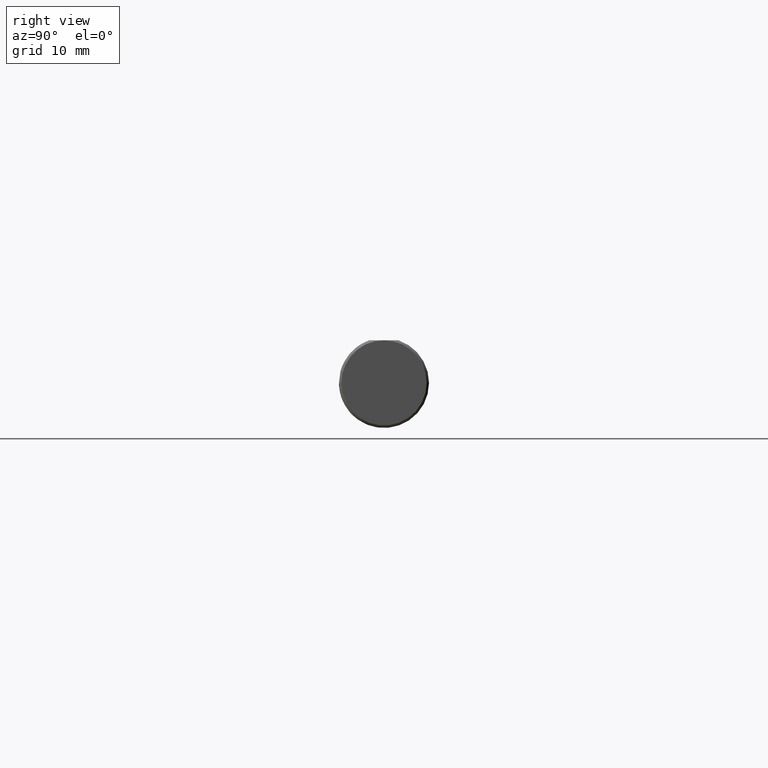
[diagram: clean part render]
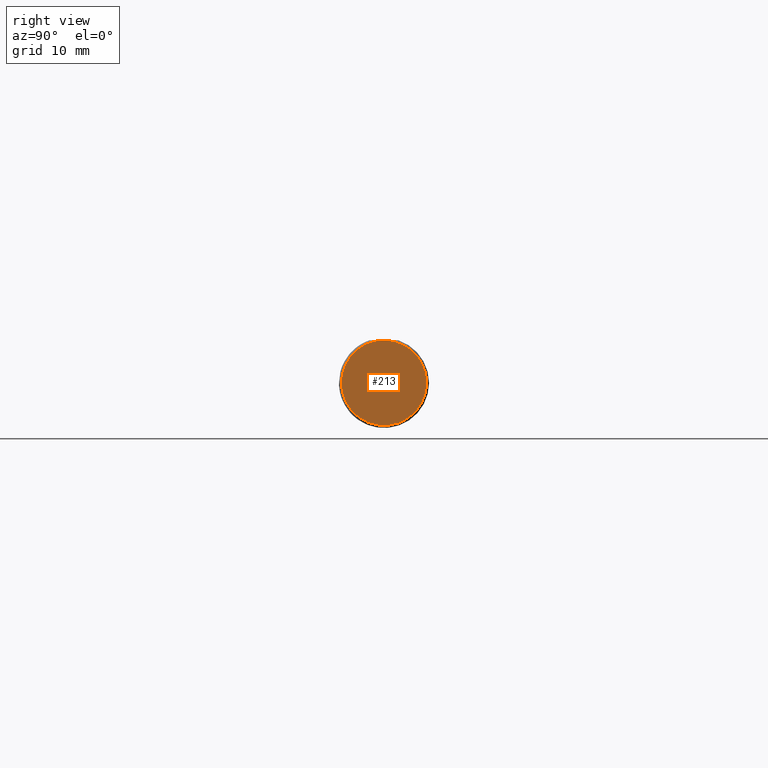
[diagram: same view with one face highlighted and labeled with its STEP entity id]
A machine part, right view. The second image highlights one B-rep face of the part: STEP entity #213.
In plain terms, the highlighted planar face has unit normal (1, 0, -0).
Its self-contained STEP definition (entity closure, byte-faithful):
#19 = AXIS2_PLACEMENT_3D ( 'NONE', #480, #277, #556 ) ;
#52 = EDGE_CURVE ( 'NONE', #694, #455, #196, .T. ) ;
#53 = ORIENTED_EDGE ( 'NONE', *, *, #496, .T. ) ;
#115 = CARTESIAN_POINT ( 'NONE',  ( -1.024723209186555203E-17, 0.1773500000000007848, 2.233143438245201271E-17 ) ) ;
#121 = CARTESIAN_POINT ( 'NONE',  ( 1.147187889101280854E-17, 3.061616997868382155E-16, 0.000000000000000000 ) ) ;
#155 = AXIS2_PLACEMENT_3D ( 'NONE', #744, #204, #479 ) ;
#168 = CARTESIAN_POINT ( 'NONE',  ( 1.147187889101280854E-17, 3.061616997868382155E-16, 0.000000000000000000 ) ) ;
#196 = CIRCLE ( 'NONE', #239, 0.1773500000000004795 ) ;
#204 = DIRECTION ( 'NONE',  ( 1.000000000000000000, 1.224646799147352961E-16, -0.000000000000000000 ) ) ;
#213 = ADVANCED_FACE ( 'NONE', ( #564 ), #355, .T. ) ;
#239 = AXIS2_PLACEMENT_3D ( 'NONE', #121, #726, #672 ) ;
#242 = DIRECTION ( 'NONE',  ( -1.224646799147352961E-16, 1.000000000000000000, 0.000000000000000000 ) ) ;
#277 = DIRECTION ( 'NONE',  ( 1.000000000000000000, 1.224646799147352961E-16, -0.000000000000000000 ) ) ;
#302 = ORIENTED_EDGE ( 'NONE', *, *, #52, .T. ) ;
#355 = PLANE ( 'NONE',  #19 ) ;
#389 = CIRCLE ( 'NONE', #465, 0.1773500000000004795 ) ;
#424 = VERTEX_POINT ( 'NONE', #737 ) ;
#442 = DIRECTION ( 'NONE',  ( 1.000000000000000000, 1.224646799147352961E-16, -0.000000000000000000 ) ) ;
#455 = VERTEX_POINT ( 'NONE', #670 ) ;
#465 = AXIS2_PLACEMENT_3D ( 'NONE', #168, #442, #242 ) ;
#479 = DIRECTION ( 'NONE',  ( -1.224646799147352961E-16, 1.000000000000000000, 0.000000000000000000 ) ) ;
#480 = CARTESIAN_POINT ( 'NONE',  ( 1.147187889101284552E-17, 1.404899976408496659E-33, 0.000000000000000000 ) ) ;
#496 = EDGE_CURVE ( 'NONE', #424, #694, #501, .T. ) ;
#501 = CIRCLE ( 'NONE', #155, 0.1773500000000004795 ) ;
#541 = ORIENTED_EDGE ( 'NONE', *, *, #740, .T. ) ;
#556 = DIRECTION ( 'NONE',  ( -1.224646799147352961E-16, 1.000000000000000000, 0.000000000000000000 ) ) ;
#564 = FACE_OUTER_BOUND ( 'NONE', #615, .T. ) ;
#615 = EDGE_LOOP ( 'NONE', ( #541, #53, #302 ) ) ;
#670 = CARTESIAN_POINT ( 'NONE',  ( -4.018563988022489946E-33, 2.586779880155948158E-16, 0.1773500000000000909 ) ) ;
#672 = DIRECTION ( 'NONE',  ( -1.224646799147352961E-16, 1.000000000000000000, 0.000000000000000000 ) ) ;
#694 = VERTEX_POINT ( 'NONE', #115 ) ;
#726 = DIRECTION ( 'NONE',  ( 1.000000000000000000, 1.224646799147352961E-16, -0.000000000000000000 ) ) ;
#737 = CARTESIAN_POINT ( 'NONE',  ( 3.319098987389116449E-17, -0.1773500000000001464, 0.000000000000000000 ) ) ;
#740 = EDGE_CURVE ( 'NONE', #455, #424, #389, .T. ) ;
#744 = CARTESIAN_POINT ( 'NONE',  ( 1.147187889101280854E-17, 3.061616997868382155E-16, 0.000000000000000000 ) ) ;